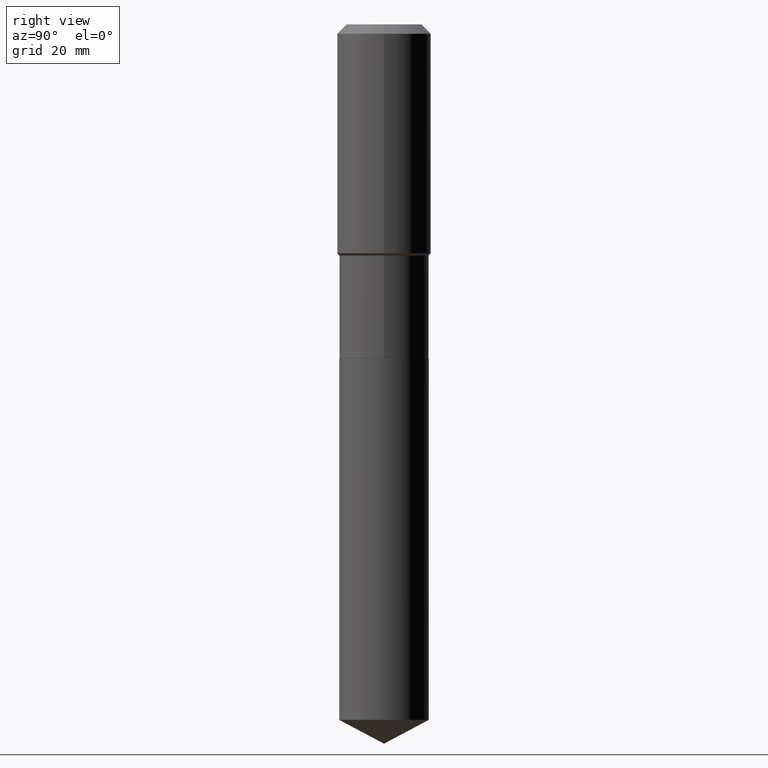
[diagram: clean part render]
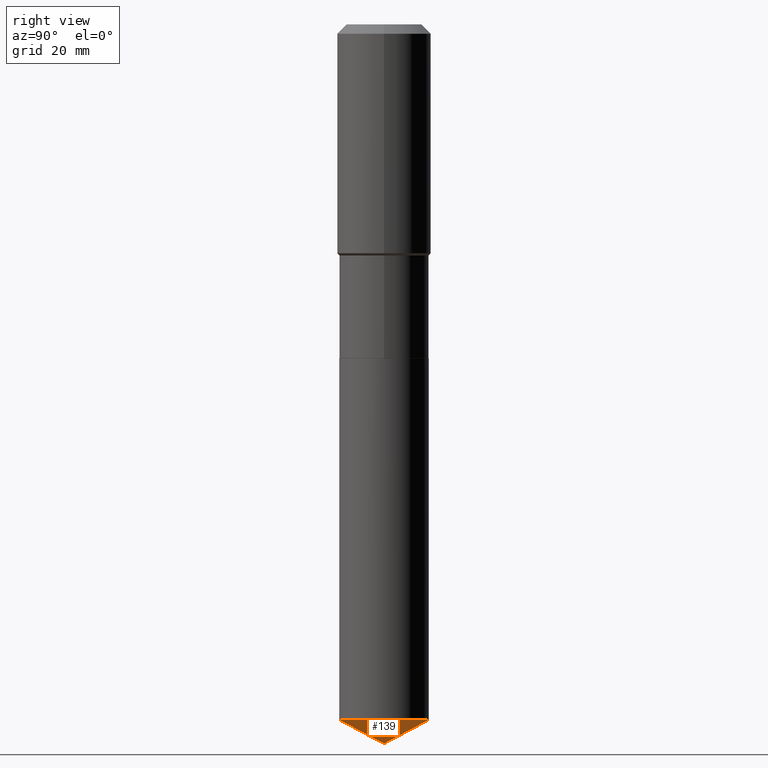
[diagram: same view with one face highlighted and labeled with its STEP entity id]
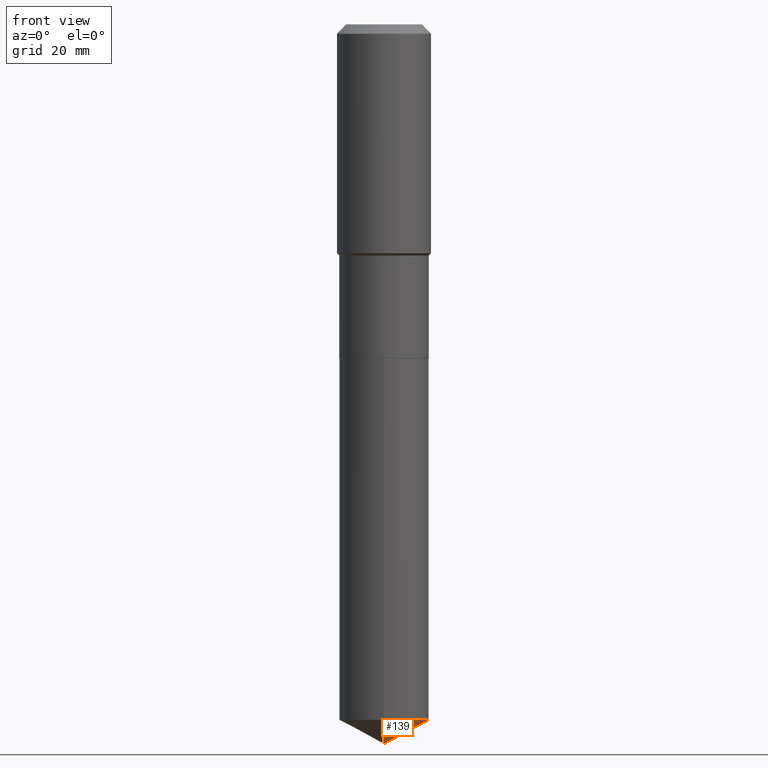
[diagram: same view with one face highlighted and labeled with its STEP entity id]
A machine part, right view. The second image highlights one B-rep face of the part: STEP entity #139.
A second angle (front view) of the same face is appended — the face is thin or edge-on in the first view.
In plain terms, the highlighted conical surface has half-angle 62 deg.
Its self-contained STEP definition (entity closure, byte-faithful):
#22 = EDGE_LOOP ( 'NONE', ( #66, #24, #221 ) ) ;
#24 = ORIENTED_EDGE ( 'NONE', *, *, #455, .T. ) ;
#32 = CARTESIAN_POINT ( 'NONE',  ( 1.473372978758260964E-28, -2.102952201092719459E-14, -6.024000000000000021 ) ) ;
#42 = FACE_OUTER_BOUND ( 'NONE', #22, .T. ) ;
#50 = DIRECTION ( 'NONE',  ( -6.165590087286827352E-15, -0.8829475928589254341, 0.4694715627858938034 ) ) ;
#66 = ORIENTED_EDGE ( 'NONE', *, *, #396, .F. ) ;
#99 = CONICAL_SURFACE ( 'NONE', #286, 74.04434902938317009, 1.082104136236484493 ) ;
#123 = VECTOR ( 'NONE', #304, 39.37007874015748143 ) ;
#139 = ADVANCED_FACE ( 'NONE', ( #42 ), #99, .T. ) ;
#149 = CARTESIAN_POINT ( 'NONE',  ( 2.664535259100518086E-15, 0.3749999999999796829, -5.824608963126946648 ) ) ;
#221 = ORIENTED_EDGE ( 'NONE', *, *, #378, .F. ) ;
#227 = CIRCLE ( 'NONE', #483, 0.3750000000000000555 ) ;
#234 = CARTESIAN_POINT ( 'NONE',  ( -8.156004168955828605E-28, 1.164082421579453333E-13, 33.34607874015748052 ) ) ;
#242 = VERTEX_POINT ( 'NONE', #282 ) ;
#266 = CARTESIAN_POINT ( 'NONE',  ( 1.473371180396803176E-28, -2.102952201092719143E-14, -6.024000000000000021 ) ) ;
#273 = DIRECTION ( 'NONE',  ( -2.445835292823377995E-29, 3.490956509118059886E-15, 1.000000000000000000 ) ) ;
#278 = VECTOR ( 'NONE', #50, 39.37007874015748854 ) ;
#282 = CARTESIAN_POINT ( 'NONE',  ( -2.618611004132207233E-15, -0.3750000000000203726, -5.824608963126944872 ) ) ;
#286 = AXIS2_PLACEMENT_3D ( 'NONE', #234, #313, #382 ) ;
#302 = LINE ( 'NONE', #32, #123 ) ;
#304 = DIRECTION ( 'NONE',  ( 6.273719981627758188E-15, 0.8829475928589286537, 0.4694715627858875306 ) ) ;
#311 = DIRECTION ( 'NONE',  ( -6.982962677686265922E-15, -1.000000000000000000, 2.913971193241880372E-15 ) ) ;
#313 = DIRECTION ( 'NONE',  ( -2.445835292823377995E-29, 3.490956509118059886E-15, 1.000000000000000000 ) ) ;
#344 = LINE ( 'NONE', #453, #278 ) ;
#378 = EDGE_CURVE ( 'NONE', #242, #474, #227, .T. ) ;
#382 = DIRECTION ( 'NONE',  ( -6.982962677686267499E-15, -1.000000000000000000, 3.541896320645578618E-15 ) ) ;
#396 = EDGE_CURVE ( 'NONE', #404, #242, #344, .T. ) ;
#404 = VERTEX_POINT ( 'NONE', #266 ) ;
#417 = CARTESIAN_POINT ( 'NONE',  ( 1.424500873929746689E-28, -2.033492504646619205E-14, -5.824608963126945760 ) ) ;
#453 = CARTESIAN_POINT ( 'NONE',  ( 1.473166094474043009E-28, -2.103245895806877580E-14, -6.024000000000000021 ) ) ;
#455 = EDGE_CURVE ( 'NONE', #404, #474, #302, .T. ) ;
#474 = VERTEX_POINT ( 'NONE', #149 ) ;
#483 = AXIS2_PLACEMENT_3D ( 'NONE', #417, #273, #311 ) ;